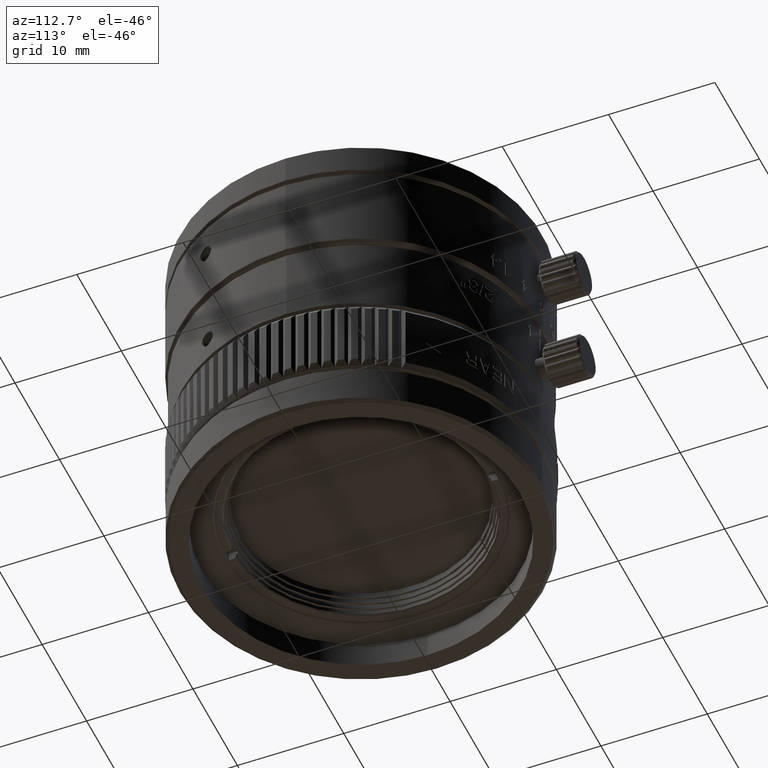
[diagram: clean part render]
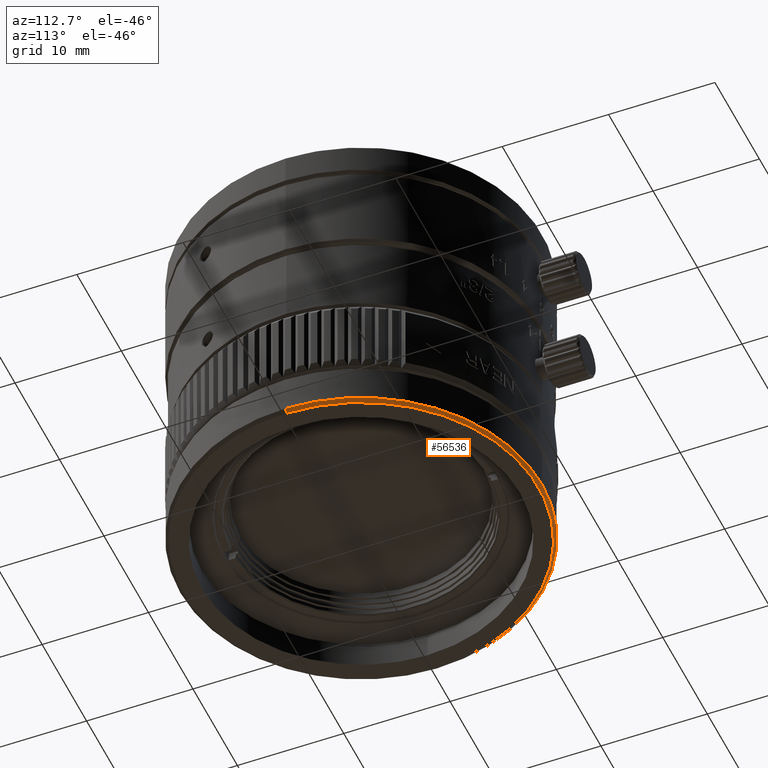
[diagram: same view with one face highlighted and labeled with its STEP entity id]
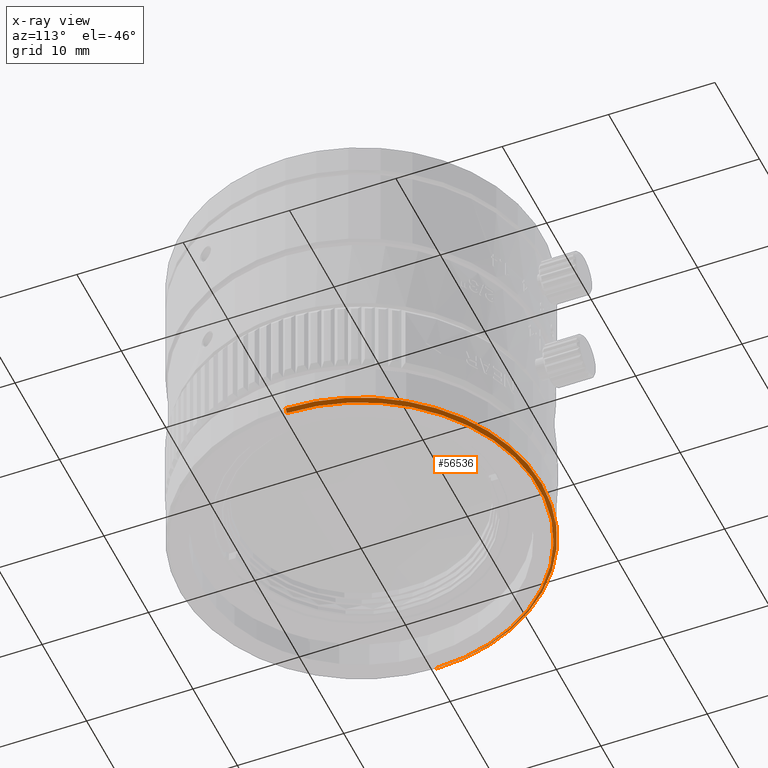
[diagram: x-ray of the same camera — body ghosted, the highlighted face saturated]
A machine part, auxiliary view. The second image highlights one B-rep face of the part: STEP entity #56536.
The next image is the same camera in x-ray: the body ghosted, the highlighted face saturated — about 0% of this face is hidden behind the body in this view.
In plain terms, the highlighted conical surface has half-angle 45 deg.
Its self-contained STEP definition (entity closure, byte-faithful):
#101 = CARTESIAN_POINT ( 'NONE',  ( 16.69999750082065404, 4.857225732735059864E-14, -13.47006162798999895 ) ) ;
#318 = DIRECTION ( 'NONE',  ( -3.237046134848029313E-32, -5.193783250874733484E-17, -1.000000000000000000 ) ) ;
#2989 = AXIS2_PLACEMENT_3D ( 'NONE', #45368, #318, #40721 ) ;
#6704 = ORIENTED_EDGE ( 'NONE', *, *, #56683, .T. ) ;
#6796 = AXIS2_PLACEMENT_3D ( 'NONE', #20301, #38188, #35724 ) ;
#7761 = AXIS2_PLACEMENT_3D ( 'NONE', #32974, #50794, #28866 ) ;
#8292 = EDGE_LOOP ( 'NONE', ( #23769, #6704, #36635, #55462, #27737 ) ) ;
#8372 = EDGE_CURVE ( 'NONE', #30370, #8938, #45059, .T. ) ;
#8938 = VERTEX_POINT ( 'NONE', #12919 ) ;
#12919 = CARTESIAN_POINT ( 'NONE',  ( 2.081899480656461116E-15, 16.99999872789385336, -13.17006035602587843 ) ) ;
#13457 = DIRECTION ( 'NONE',  ( -3.237046134848029313E-32, -5.193783250874733484E-17, -1.000000000000000000 ) ) ;
#14036 = CARTESIAN_POINT ( 'NONE',  ( 16.99999872789380717, 4.857225732735059864E-14, -13.17006035602587666 ) ) ;
#17042 = EDGE_CURVE ( 'NONE', #22332, #28305, #28320, .T. ) ;
#17969 = EDGE_CURVE ( 'NONE', #22332, #25165, #48696, .T. ) ;
#18038 = CONICAL_SURFACE ( 'NONE', #6796, 16.99999872789380717, 0.7853980885794746847 ) ;
#19017 = CARTESIAN_POINT ( 'NONE',  ( -16.69999750082065404, 5.063578695298924850E-14, -13.47006162798999895 ) ) ;
#20301 = CARTESIAN_POINT ( 'NONE',  ( 9.711139132983595640E-33, 4.857225732735059864E-14, -13.17006035602587488 ) ) ;
#22332 = VERTEX_POINT ( 'NONE', #101 ) ;
#23769 = ORIENTED_EDGE ( 'NONE', *, *, #17042, .T. ) ;
#25165 = VERTEX_POINT ( 'NONE', #14036 ) ;
#27737 = ORIENTED_EDGE ( 'NONE', *, *, #17969, .F. ) ;
#28305 = VERTEX_POINT ( 'NONE', #19017 ) ;
#28320 = CIRCLE ( 'NONE', #7761, 16.69999750082065404 ) ;
#28866 = DIRECTION ( 'NONE',  ( 1.000000000000000000, 0.000000000000000000, 0.000000000000000000 ) ) ;
#30109 = LINE ( 'NONE', #47951, #43340 ) ;
#30370 = VERTEX_POINT ( 'NONE', #44839 ) ;
#30724 = AXIS2_PLACEMENT_3D ( 'NONE', #49993, #13457, #40973 ) ;
#32974 = CARTESIAN_POINT ( 'NONE',  ( 9.711139132983595640E-33, 4.857225732735059864E-14, -13.47006162798999895 ) ) ;
#34734 = EDGE_CURVE ( 'NONE', #8938, #25165, #57812, .T. ) ;
#35724 = DIRECTION ( 'NONE',  ( 1.000000000000000000, 0.000000000000000000, 0.000000000000000000 ) ) ;
#36635 = ORIENTED_EDGE ( 'NONE', *, *, #8372, .T. ) ;
#38188 = DIRECTION ( 'NONE',  ( 0.000000000000000000, 0.000000000000000000, 1.000000000000000000 ) ) ;
#38662 = VECTOR ( 'NONE', #39661, 1000.000000000000000 ) ;
#39203 = DIRECTION ( 'NONE',  ( -0.7071067282822490752, 8.659559914464135769E-17, 0.7071068340908420735 ) ) ;
#39661 = DIRECTION ( 'NONE',  ( 0.7071067282822490752, 0.000000000000000000, 0.7071068340908420735 ) ) ;
#40721 = DIRECTION ( 'NONE',  ( -1.572214652996820691E-48, -1.000000000000000000, 1.020425650462227098E-16 ) ) ;
#40973 = DIRECTION ( 'NONE',  ( -1.572214652996820691E-48, -1.000000000000000000, 1.020425650462227098E-16 ) ) ;
#43340 = VECTOR ( 'NONE', #39203, 1000.000000000000000 ) ;
#44839 = CARTESIAN_POINT ( 'NONE',  ( -16.99999872789380717, 5.065415673011302020E-14, -13.17006035602587666 ) ) ;
#45059 = CIRCLE ( 'NONE', #2989, 16.99999872789380717 ) ;
#45368 = CARTESIAN_POINT ( 'NONE',  ( 9.711139132983609324E-33, 4.858783867827198651E-14, -13.17006035602587666 ) ) ;
#47951 = CARTESIAN_POINT ( 'NONE',  ( -16.99999872789380717, 5.065415673011302020E-14, -13.17006035602587488 ) ) ;
#48696 = LINE ( 'NONE', #57746, #38662 ) ;
#49993 = CARTESIAN_POINT ( 'NONE',  ( 9.711139132983609324E-33, 4.858783867827198651E-14, -13.17006035602587666 ) ) ;
#50794 = DIRECTION ( 'NONE',  ( 0.000000000000000000, 0.000000000000000000, 1.000000000000000000 ) ) ;
#55462 = ORIENTED_EDGE ( 'NONE', *, *, #34734, .T. ) ;
#56284 = FACE_OUTER_BOUND ( 'NONE', #8292, .T. ) ;
#56536 = ADVANCED_FACE ( 'NONE', ( #56284 ), #18038, .T. ) ;
#56683 = EDGE_CURVE ( 'NONE', #28305, #30370, #30109, .T. ) ;
#57746 = CARTESIAN_POINT ( 'NONE',  ( 16.99999872789380717, 4.857225732735059864E-14, -13.17006035602587488 ) ) ;
#57812 = CIRCLE ( 'NONE', #30724, 16.99999872789380717 ) ;